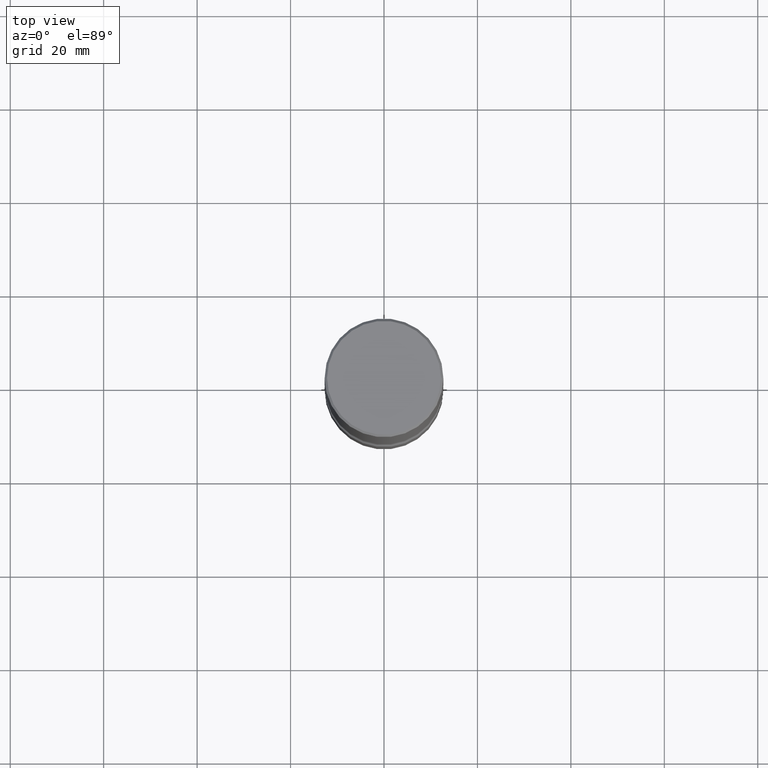
[diagram: clean part render]
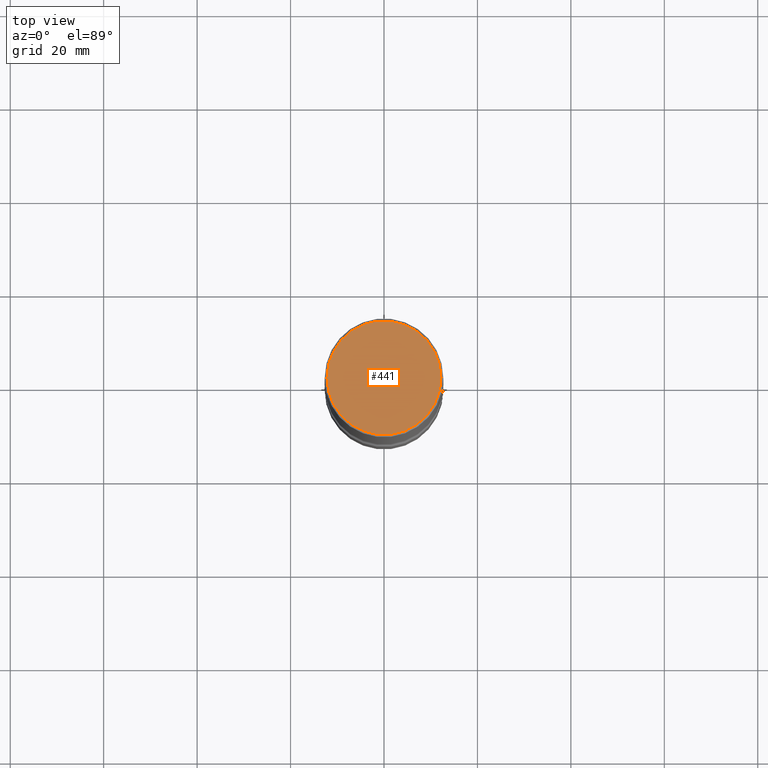
[diagram: same view with one face highlighted and labeled with its STEP entity id]
A machine part, top view. The second image highlights one B-rep face of the part: STEP entity #441.
In plain terms, the highlighted planar face has unit normal (0, -0, -1).
Its self-contained STEP definition (entity closure, byte-faithful):
#7 = AXIS2_PLACEMENT_3D ( 'NONE', #262, #574, #15 ) ;
#15 = DIRECTION ( 'NONE',  ( -1.000000000000000000, 6.982962677686265922E-15, -4.876176775795935793E-29 ) ) ;
#72 = AXIS2_PLACEMENT_3D ( 'NONE', #651, #98, #703 ) ;
#98 = DIRECTION ( 'NONE',  ( -2.445468806185136597E-29, 3.491481338843145583E-15, 1.000000000000000000 ) ) ;
#147 = CARTESIAN_POINT ( 'NONE',  ( -3.131554243005659264E-46, 4.471029511141341874E-32, 1.280553747030123384E-17 ) ) ;
#175 = CARTESIAN_POINT ( 'NONE',  ( -0.4799999999999995381, 3.386736898677836041E-15, 1.280553747027767124E-17 ) ) ;
#195 = FACE_OUTER_BOUND ( 'NONE', #450, .T. ) ;
#208 = CIRCLE ( 'NONE', #772, 0.4799999999999995381 ) ;
#210 = DIRECTION ( 'NONE',  ( 1.000000000000000000, -6.982962677686266711E-15, 4.876036955247133888E-29 ) ) ;
#262 = CARTESIAN_POINT ( 'NONE',  ( 3.351822085289404392E-15, 0.4799999999999995381, -1.669508273909557670E-15 ) ) ;
#269 = PLANE ( 'NONE',  #7 ) ;
#335 = CIRCLE ( 'NONE', #72, 0.4799999999999995381 ) ;
#413 = EDGE_CURVE ( 'NONE', #728, #799, #208, .T. ) ;
#441 = ADVANCED_FACE ( 'NONE', ( #195 ), #269, .F. ) ;
#450 = EDGE_LOOP ( 'NONE', ( #684, #655 ) ) ;
#504 = DIRECTION ( 'NONE',  ( -2.445468806185136597E-29, 3.491481338843145583E-15, 1.000000000000000000 ) ) ;
#558 = CARTESIAN_POINT ( 'NONE',  ( 0.4799999999999995381, -3.396558832296479338E-15, 1.280553747032483033E-17 ) ) ;
#574 = DIRECTION ( 'NONE',  ( 2.438088387897960049E-29, -3.491481338843145188E-15, -1.000000000000000000 ) ) ;
#591 = EDGE_CURVE ( 'NONE', #799, #728, #335, .T. ) ;
#651 = CARTESIAN_POINT ( 'NONE',  ( -3.131554243005659264E-46, 4.471029511141341874E-32, 1.280553747030123384E-17 ) ) ;
#655 = ORIENTED_EDGE ( 'NONE', *, *, #591, .T. ) ;
#684 = ORIENTED_EDGE ( 'NONE', *, *, #413, .T. ) ;
#703 = DIRECTION ( 'NONE',  ( 1.000000000000000000, -6.982962677686266711E-15, 4.876036955247133888E-29 ) ) ;
#728 = VERTEX_POINT ( 'NONE', #175 ) ;
#772 = AXIS2_PLACEMENT_3D ( 'NONE', #147, #504, #210 ) ;
#799 = VERTEX_POINT ( 'NONE', #558 ) ;